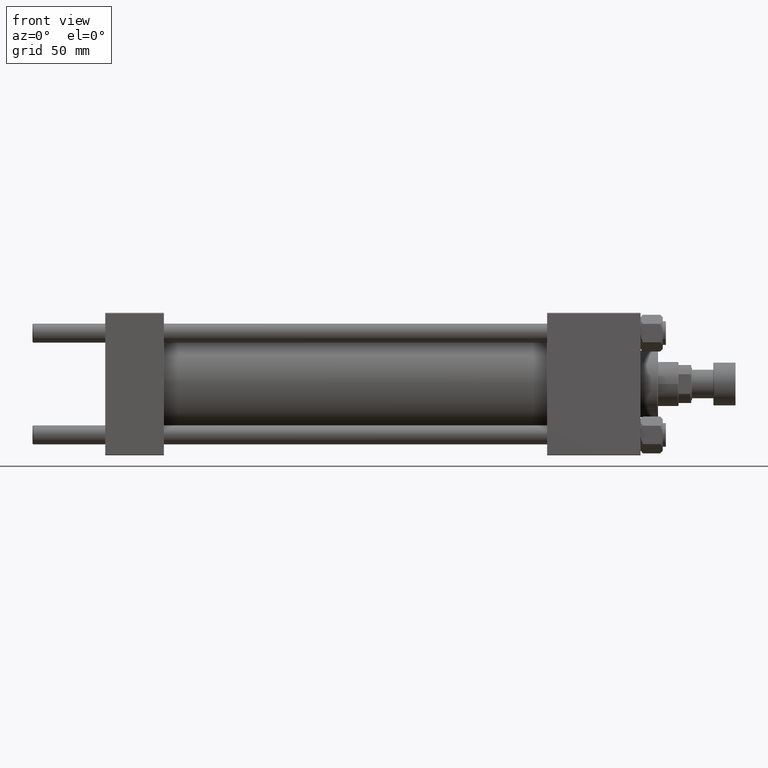
[diagram: clean part render]
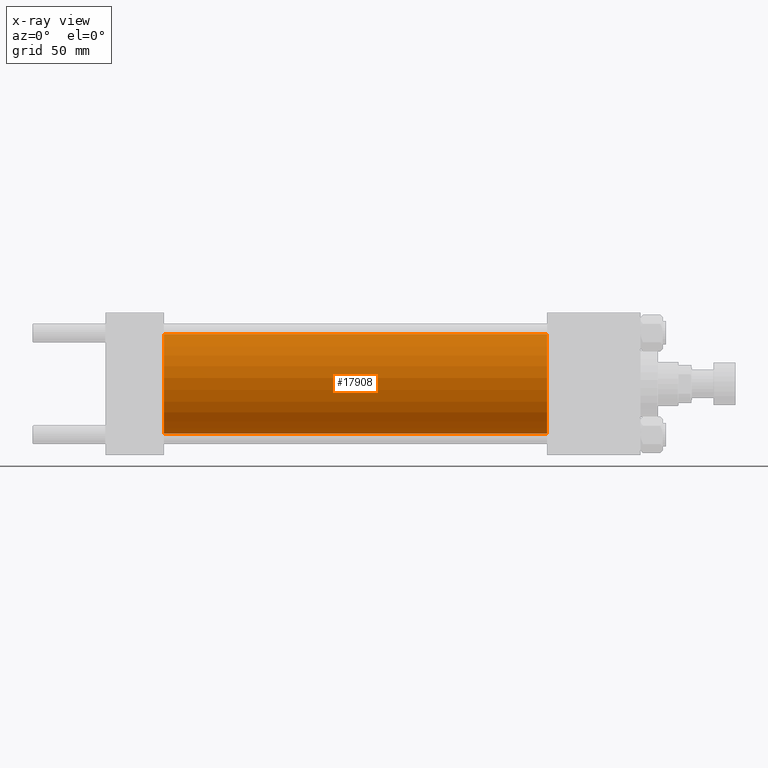
[diagram: x-ray — body ghosted, one internal face saturated and labeled with its STEP entity id]
A machine part, front view, then the same camera in x-ray: the body is ghosted and one INTERNAL B-rep face — a face not visible from any outside direction — is saturated and labeled: STEP entity #17908.
In plain terms, the highlighted cylindrical surface (partial cylindrical patch) has radius 31.5 mm, axis along (-1, -0, -0).
Its self-contained STEP definition (entity closure, byte-faithful):
#346 = VERTEX_POINT ( 'NONE', #45044 ) ;
#1238 = LINE ( 'NONE', #32260, #17643 ) ;
#2030 = EDGE_LOOP ( 'NONE', ( #35487, #9756, #26276, #23691 ) ) ;
#9756 = ORIENTED_EDGE ( 'NONE', *, *, #49887, .T. ) ;
#10488 = CARTESIAN_POINT ( 'NONE',  ( 37.00000000000000000, 0.000000000000000000, 0.000000000000000000 ) ) ;
#12677 = DIRECTION ( 'NONE',  ( 0.000000000000000000, 0.000000000000000000, 1.000000000000000000 ) ) ;
#14528 = VERTEX_POINT ( 'NONE', #42770 ) ;
#14781 = CARTESIAN_POINT ( 'NONE',  ( 37.00000000000000000, 0.000000000000000000, 31.50000000000000000 ) ) ;
#15028 = CARTESIAN_POINT ( 'NONE',  ( 278.9999999999999432, 0.000000000000000000, 0.000000000000000000 ) ) ;
#16545 = AXIS2_PLACEMENT_3D ( 'NONE', #10488, #43643, #26003 ) ;
#17643 = VECTOR ( 'NONE', #47752, 1000.000000000000000 ) ;
#17908 = ADVANCED_FACE ( 'NONE', ( #46747 ), #23628, .F. ) ;
#18134 = AXIS2_PLACEMENT_3D ( 'NONE', #15028, #26229, #34608 ) ;
#18710 = DIRECTION ( 'NONE',  ( -1.000000000000000000, -0.000000000000000000, -0.000000000000000000 ) ) ;
#20471 = AXIS2_PLACEMENT_3D ( 'NONE', #39132, #35820, #12677 ) ;
#20577 = CIRCLE ( 'NONE', #18134, 31.50000000000000000 ) ;
#20721 = CARTESIAN_POINT ( 'NONE',  ( 278.9999999999999432, 0.000000000000000000, 31.50000000000000000 ) ) ;
#23628 = CYLINDRICAL_SURFACE ( 'NONE', #20471, 31.50000000000000000 ) ;
#23691 = ORIENTED_EDGE ( 'NONE', *, *, #25262, .F. ) ;
#25262 = EDGE_CURVE ( 'NONE', #25331, #34370, #26342, .T. ) ;
#25331 = VERTEX_POINT ( 'NONE', #20721 ) ;
#26003 = DIRECTION ( 'NONE',  ( 0.000000000000000000, 0.000000000000000000, -1.000000000000000000 ) ) ;
#26229 = DIRECTION ( 'NONE',  ( 1.000000000000000000, 0.000000000000000000, 0.000000000000000000 ) ) ;
#26276 = ORIENTED_EDGE ( 'NONE', *, *, #38526, .F. ) ;
#26342 = LINE ( 'NONE', #34227, #41410 ) ;
#32260 = CARTESIAN_POINT ( 'NONE',  ( 278.9999999999999432, 3.857637417314162689E-15, -31.50000000000000000 ) ) ;
#34227 = CARTESIAN_POINT ( 'NONE',  ( 278.9999999999999432, 0.000000000000000000, 31.50000000000000000 ) ) ;
#34270 = EDGE_CURVE ( 'NONE', #25331, #14528, #20577, .T. ) ;
#34370 = VERTEX_POINT ( 'NONE', #14781 ) ;
#34608 = DIRECTION ( 'NONE',  ( 0.000000000000000000, 0.000000000000000000, -1.000000000000000000 ) ) ;
#35487 = ORIENTED_EDGE ( 'NONE', *, *, #34270, .T. ) ;
#35820 = DIRECTION ( 'NONE',  ( -1.000000000000000000, -0.000000000000000000, -0.000000000000000000 ) ) ;
#38526 = EDGE_CURVE ( 'NONE', #34370, #346, #47392, .T. ) ;
#39132 = CARTESIAN_POINT ( 'NONE',  ( 278.9999999999999432, 0.000000000000000000, 0.000000000000000000 ) ) ;
#41410 = VECTOR ( 'NONE', #18710, 1000.000000000000000 ) ;
#42770 = CARTESIAN_POINT ( 'NONE',  ( 278.9999999999999432, 3.857637417314162689E-15, -31.50000000000000000 ) ) ;
#43643 = DIRECTION ( 'NONE',  ( 1.000000000000000000, 0.000000000000000000, 0.000000000000000000 ) ) ;
#45044 = CARTESIAN_POINT ( 'NONE',  ( 37.00000000000000000, 3.857637417314162689E-15, -31.50000000000000000 ) ) ;
#46747 = FACE_OUTER_BOUND ( 'NONE', #2030, .T. ) ;
#47392 = CIRCLE ( 'NONE', #16545, 31.50000000000000000 ) ;
#47752 = DIRECTION ( 'NONE',  ( -1.000000000000000000, -0.000000000000000000, -0.000000000000000000 ) ) ;
#49887 = EDGE_CURVE ( 'NONE', #14528, #346, #1238, .T. ) ;